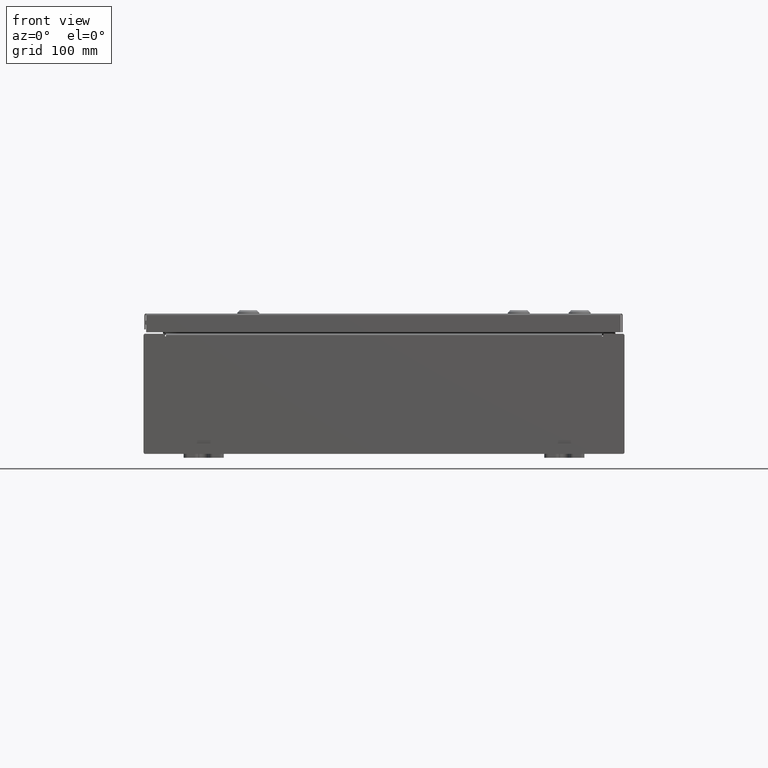
[diagram: clean part render]
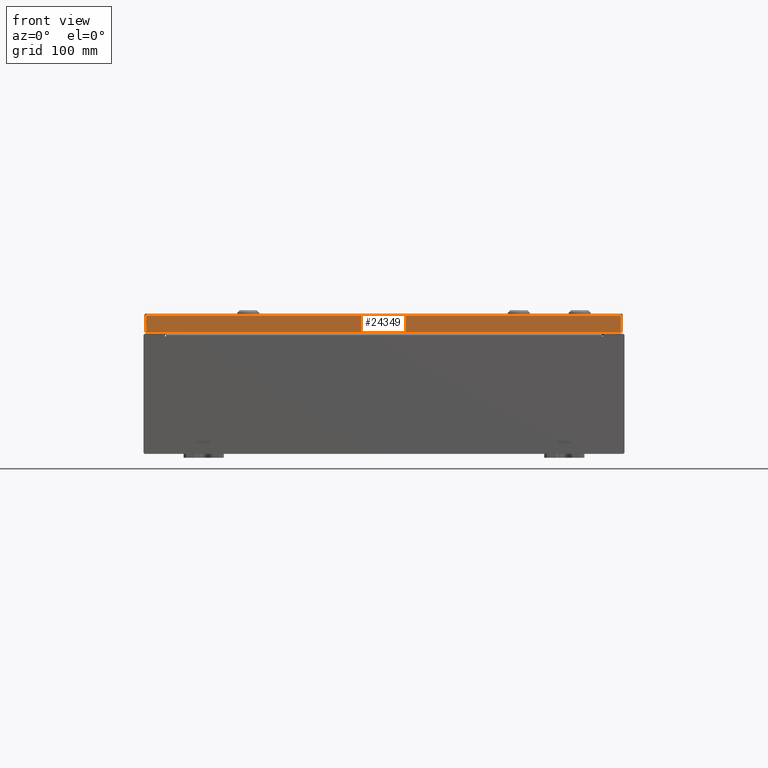
[diagram: same view with one face highlighted and labeled with its STEP entity id]
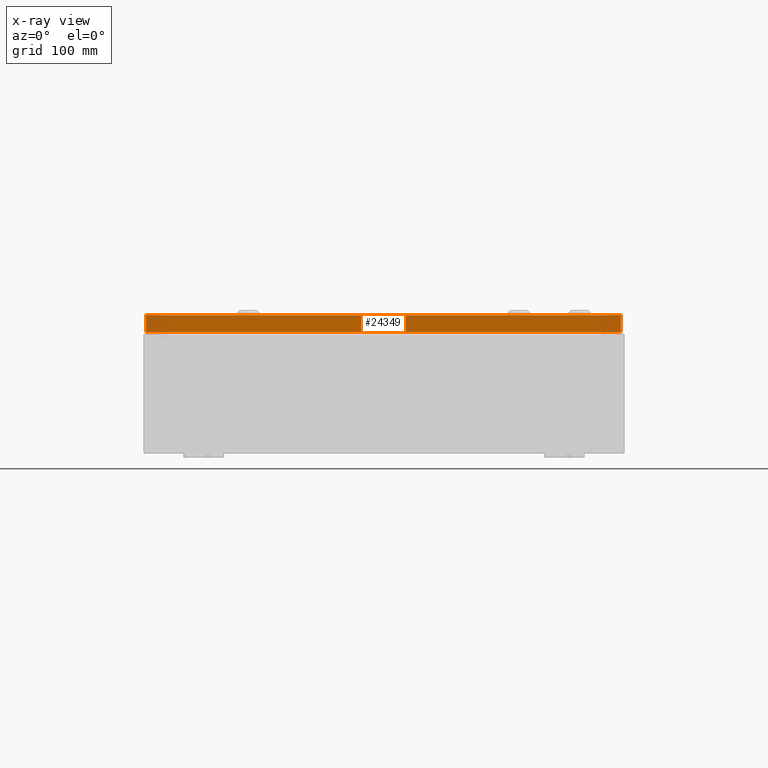
[diagram: x-ray of the same camera — body ghosted, the highlighted face saturated]
A machine part, front view. The second image highlights one B-rep face of the part: STEP entity #24349.
The next image is the same camera in x-ray: the body ghosted, the highlighted face saturated — about 0% of this face is hidden behind the body in this view.
In plain terms, the highlighted planar face has unit normal (-0, 1, -0).
Its self-contained STEP definition (entity closure, byte-faithful):
#3639 = VERTEX_POINT ( 'NONE', #26716 ) ;
#4137 = FACE_OUTER_BOUND ( 'NONE', #52002, .T. ) ;
#7586 = CARTESIAN_POINT ( 'NONE',  ( 11.93750000000000000, -11.93750000000000000, -0.08770000000000026400 ) ) ;
#11269 = LINE ( 'NONE', #59243, #35679 ) ;
#11780 = VECTOR ( 'NONE', #12843, 39.37007874015748100 ) ;
#12843 = DIRECTION ( 'NONE',  ( -0.0000000000000000000, -2.532419924601866100E-015, -1.000000000000000000 ) ) ;
#15296 = CARTESIAN_POINT ( 'NONE',  ( 11.84865786437626900, -11.93750000000000000, -0.07470000000000015500 ) ) ;
#18496 = EDGE_CURVE ( 'NONE', #62499, #3639, #47158, .T. ) ;
#21971 = CARTESIAN_POINT ( 'NONE',  ( -11.84865786437626800, -11.93750000000000000, -0.08770000000000026400 ) ) ;
#22040 = CARTESIAN_POINT ( 'NONE',  ( 11.84865786437626900, -11.93750000000000200, -0.9377000000000002000 ) ) ;
#23591 = VERTEX_POINT ( 'NONE', #22040 ) ;
#24349 = ADVANCED_FACE ( 'NONE', ( #4137 ), #40224, .F. ) ;
#24804 = ORIENTED_EDGE ( 'NONE', *, *, #54800, .F. ) ;
#26716 = CARTESIAN_POINT ( 'NONE',  ( -11.84865786437626800, -11.93750000000000200, -0.9376999999999969800 ) ) ;
#27213 = ORIENTED_EDGE ( 'NONE', *, *, #45632, .F. ) ;
#28247 = VERTEX_POINT ( 'NONE', #32780 ) ;
#29703 = ORIENTED_EDGE ( 'NONE', *, *, #18496, .T. ) ;
#32285 = VECTOR ( 'NONE', #51293, 39.37007874015748100 ) ;
#32780 = CARTESIAN_POINT ( 'NONE',  ( 11.84865786437627100, -11.93750000000000000, -0.08770000000000026400 ) ) ;
#34797 = EDGE_CURVE ( 'NONE', #28247, #23591, #36166, .T. ) ;
#35679 = VECTOR ( 'NONE', #54556, 39.37007874015748100 ) ;
#36166 = LINE ( 'NONE', #15296, #11780 ) ;
#39797 = DIRECTION ( 'NONE',  ( 0.0000000000000000000, 2.532419924601866100E-015, 1.000000000000000000 ) ) ;
#39932 = DIRECTION ( 'NONE',  ( -3.187436615352006200E-031, 1.000000000000000000, -2.532419924601866100E-015 ) ) ;
#40098 = CARTESIAN_POINT ( 'NONE',  ( 0.0000000000000000000, -11.93750000000000000, 3.059669752903974500E-014 ) ) ;
#40224 = PLANE ( 'NONE',  #57273 ) ;
#40751 = VECTOR ( 'NONE', #60617, 39.37007874015748100 ) ;
#41047 = ORIENTED_EDGE ( 'NONE', *, *, #34797, .F. ) ;
#42262 = LINE ( 'NONE', #7586, #40751 ) ;
#45632 = EDGE_CURVE ( 'NONE', #62499, #28247, #42262, .T. ) ;
#47158 = LINE ( 'NONE', #49890, #32285 ) ;
#49890 = CARTESIAN_POINT ( 'NONE',  ( -11.84865786437626600, -11.93750000000000000, 3.059669752903974500E-014 ) ) ;
#51293 = DIRECTION ( 'NONE',  ( 0.0000000000000000000, -2.532419924601866100E-015, -1.000000000000000000 ) ) ;
#52002 = EDGE_LOOP ( 'NONE', ( #27213, #29703, #24804, #41047 ) ) ;
#54556 = DIRECTION ( 'NONE',  ( -1.000000000000000000, 4.379057701015054300E-047, 1.258652478756310100E-016 ) ) ;
#54800 = EDGE_CURVE ( 'NONE', #23591, #3639, #11269, .T. ) ;
#57273 = AXIS2_PLACEMENT_3D ( 'NONE', #40098, #39932, #39797 ) ;
#59243 = CARTESIAN_POINT ( 'NONE',  ( 11.93750000000000000, -11.93750000000000200, -0.9377000000000002000 ) ) ;
#60617 = DIRECTION ( 'NONE',  ( 1.000000000000000000, 3.187436615352006600E-031, -7.980458346197363700E-046 ) ) ;
#62499 = VERTEX_POINT ( 'NONE', #21971 ) ;